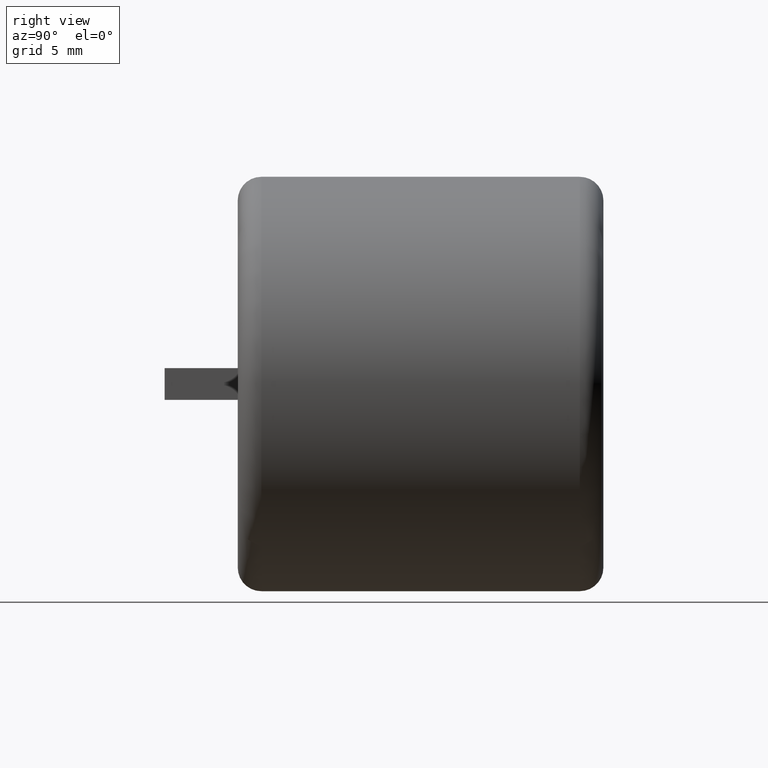
[diagram: clean part render]
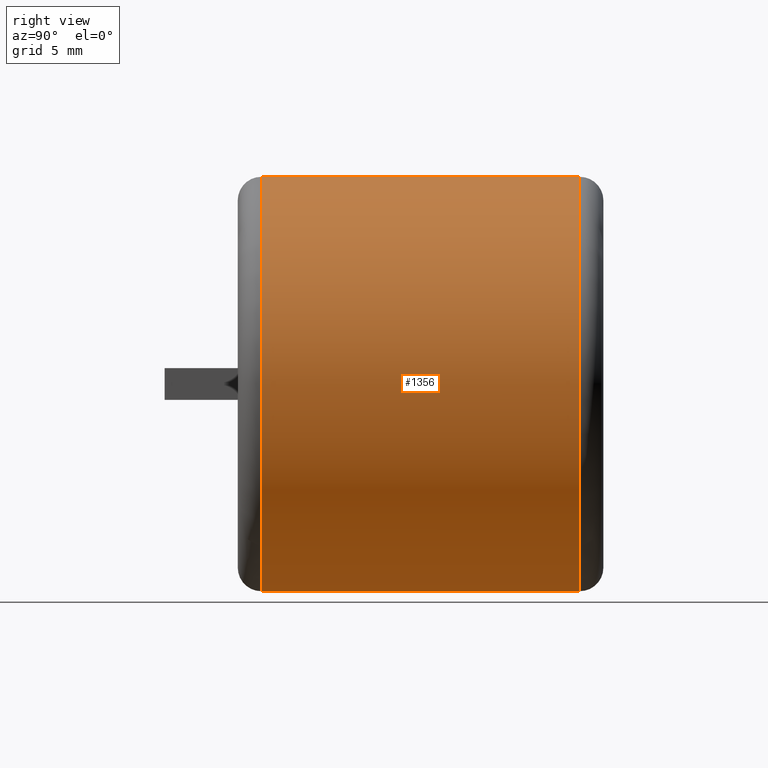
[diagram: same view with one face highlighted and labeled with its STEP entity id]
A machine part, right view. The second image highlights one B-rep face of the part: STEP entity #1356.
In plain terms, the highlighted cylindrical surface (partial cylindrical patch) has radius 8.5 mm, axis along (-0, -1, -0).
Its self-contained STEP definition (entity closure, byte-faithful):
#13 = CARTESIAN_POINT ( 'NONE',  ( 0.0000000000000000000, 14.03250000000000100, 0.0000000000000000000 ) ) ;
#281 = FACE_OUTER_BOUND ( 'NONE', #868, .T. ) ;
#303 = ORIENTED_EDGE ( 'NONE', *, *, #1387, .F. ) ;
#354 = VERTEX_POINT ( 'NONE', #541 ) ;
#381 = VECTOR ( 'NONE', #1777, 1000.000000000000000 ) ;
#409 = CARTESIAN_POINT ( 'NONE',  ( 0.0000000000000000000, 0.9674999999999995800, -8.500000000000000000 ) ) ;
#483 = AXIS2_PLACEMENT_3D ( 'NONE', #13, #2148, #1727 ) ;
#514 = CARTESIAN_POINT ( 'NONE',  ( 0.0000000000000000000, 15.00000000000000000, -8.500000000000000000 ) ) ;
#541 = CARTESIAN_POINT ( 'NONE',  ( 1.040949779275250100E-015, 14.03250000000000100, 8.500000000000000000 ) ) ;
#611 = CIRCLE ( 'NONE', #1941, 8.500000000000000000 ) ;
#779 = VERTEX_POINT ( 'NONE', #2600 ) ;
#806 = EDGE_CURVE ( 'NONE', #918, #354, #2724, .T. ) ;
#868 = EDGE_LOOP ( 'NONE', ( #2276, #992, #1686, #303 ) ) ;
#918 = VERTEX_POINT ( 'NONE', #1554 ) ;
#992 = ORIENTED_EDGE ( 'NONE', *, *, #2738, .T. ) ;
#1024 = EDGE_CURVE ( 'NONE', #779, #2201, #611, .T. ) ;
#1133 = LINE ( 'NONE', #514, #381 ) ;
#1356 = ADVANCED_FACE ( 'NONE', ( #281 ), #1529, .T. ) ;
#1387 = EDGE_CURVE ( 'NONE', #918, #2201, #1133, .T. ) ;
#1420 = DIRECTION ( 'NONE',  ( 0.0000000000000000000, 0.0000000000000000000, 1.000000000000000000 ) ) ;
#1427 = CARTESIAN_POINT ( 'NONE',  ( 1.040949779275250100E-015, 15.00000000000000000, 8.500000000000000000 ) ) ;
#1486 = CARTESIAN_POINT ( 'NONE',  ( 0.0000000000000000000, 15.00000000000000000, 0.0000000000000000000 ) ) ;
#1529 = CYLINDRICAL_SURFACE ( 'NONE', #2166, 8.500000000000000000 ) ;
#1554 = CARTESIAN_POINT ( 'NONE',  ( 0.0000000000000000000, 14.03250000000000100, -8.500000000000000000 ) ) ;
#1641 = CARTESIAN_POINT ( 'NONE',  ( 0.0000000000000000000, 0.9674999999999995800, 0.0000000000000000000 ) ) ;
#1686 = ORIENTED_EDGE ( 'NONE', *, *, #1024, .T. ) ;
#1727 = DIRECTION ( 'NONE',  ( 0.0000000000000000000, 0.0000000000000000000, 1.000000000000000000 ) ) ;
#1777 = DIRECTION ( 'NONE',  ( -0.0000000000000000000, -1.000000000000000000, -0.0000000000000000000 ) ) ;
#1941 = AXIS2_PLACEMENT_3D ( 'NONE', #1641, #2521, #1420 ) ;
#1966 = DIRECTION ( 'NONE',  ( -0.0000000000000000000, -1.000000000000000000, -0.0000000000000000000 ) ) ;
#2148 = DIRECTION ( 'NONE',  ( -0.0000000000000000000, -1.000000000000000000, -0.0000000000000000000 ) ) ;
#2166 = AXIS2_PLACEMENT_3D ( 'NONE', #1486, #1966, #2195 ) ;
#2195 = DIRECTION ( 'NONE',  ( 0.0000000000000000000, 0.0000000000000000000, -1.000000000000000000 ) ) ;
#2201 = VERTEX_POINT ( 'NONE', #409 ) ;
#2276 = ORIENTED_EDGE ( 'NONE', *, *, #806, .T. ) ;
#2518 = DIRECTION ( 'NONE',  ( -0.0000000000000000000, -1.000000000000000000, -0.0000000000000000000 ) ) ;
#2521 = DIRECTION ( 'NONE',  ( 0.0000000000000000000, 1.000000000000000000, 0.0000000000000000000 ) ) ;
#2532 = LINE ( 'NONE', #1427, #2693 ) ;
#2600 = CARTESIAN_POINT ( 'NONE',  ( 1.040949779275250100E-015, 0.9674999999999995800, 8.500000000000000000 ) ) ;
#2693 = VECTOR ( 'NONE', #2518, 1000.000000000000000 ) ;
#2724 = CIRCLE ( 'NONE', #483, 8.500000000000000000 ) ;
#2738 = EDGE_CURVE ( 'NONE', #354, #779, #2532, .T. ) ;